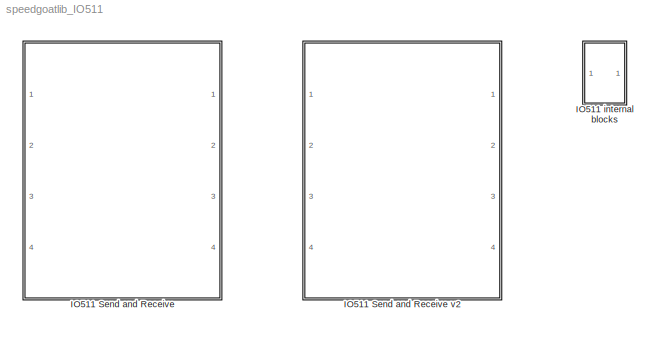
MODEL speedgoatlib_IO511
KIND library
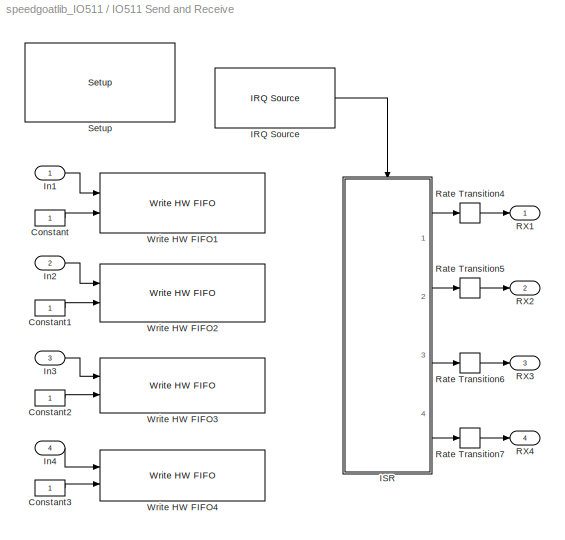
BLOCK [SubSystem] IO511 Send and Receive
  FunctionWithSeparateData = off
  MaskDisplay = disp('IO511<path>');\nport_label('input', 1, 'Chan1 TX' );\nport_label('input', 2, 'Chan2 TX' );\nport_label('input', 3, 'Chan3 TX' );\nport_label('input', 4, 'Chan4 TX' );\nport_label('output', 1, 'Chan1 RX' );\nport_label('output', 2, 'Chan2 RX' );\nport_label('output', 3, 'Chan3 RX' );\nport_label('output', 4, 'Chan4 RX' );\n\n
  MaskHideContents = off
  MaskIconFrame = on
  MaskIconOpaque = on
  MaskIconRotate = none
  MaskIconUnits = autoscale
  MaskPortRotate = default
  MinAlgLoopOccurrences = off
  Opaque = off
  Ports = [4, 4]
  PropExecContextOutsideSubsystem = off
  RTWSystemCode = Auto
  RequestExecContextInheritance = off
  SID = 149
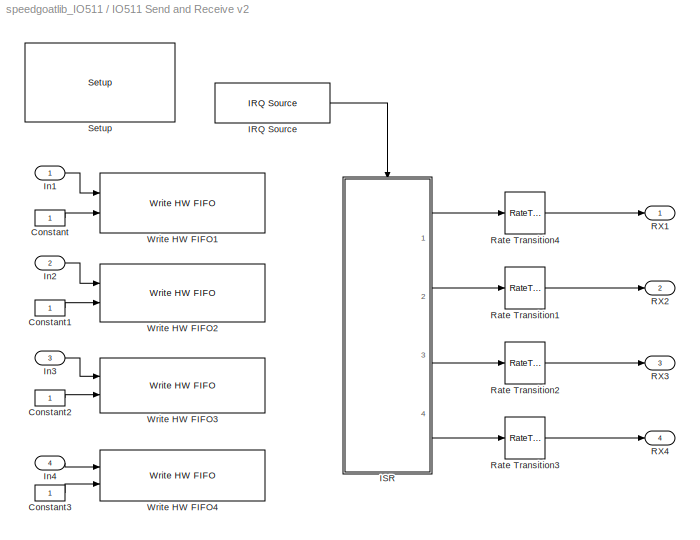
BLOCK [SubSystem] IO511 Send and Receive v2
  FunctionWithSeparateData = off
  MaskCallbackString = ||sg_IO511_sendrecv_m(2);||||||||||||||||
  MaskDescription = IO511 Send and Receive block
  MaskDisplay = disp('IO511<path>');\nport_label('input', 1, 'Chan1 TX' );\nport_label('input', 2, 'Chan2 TX' );\nport_label('input', 3, 'Chan3 TX' );\nport_label('input', 4, 'Chan4 TX' );\nport_label('output', 1, 'Chan1 RX' );\nport_label('output', 2, 'Chan2 RX' );\nport_label('output', 3, 'Chan3 RX' );\nport_label('output', 4, 'Chan4 RX' );\n\n
  MaskEnableString = on,on,on,on,on,on,on,on,on,on,on,on,on,on,on,on,on,on,on
  MaskHelp = web(['<userpath><path>'],'-helpbrowser');
  MaskHideContents = off
  MaskIconFrame = on
  MaskIconOpaque = on
  MaskIconRotate = none
  MaskIconUnits = autoscale
  MaskInitialization = %set_param(gcb, 'LinkStatus', 'inactive');\nmode_vect = nan;\nfreq_vect = nan; \nfifo_threshold_vect = nan;\nsg_IO511_sendrecv_m(3);\nsg_IO511_sendrecv_m(1, module_id, pci_slot, ...\n                       mode_vect, channel1_mode, channel2_mode, channel3_mode, channel4_mode, ...\n                       freq_vect, channel1_freq, channel2_freq, channel3_freq, channel4_freq, ...\n                   ...<+239ch>
  MaskPortRotate = default
  MaskPromptString = Module identifier|PCI slot (-1: autosearch)|Channel setup|Mode|Mode|Mode|Mode|Frequency [Hz] (-1 if TX freq is cable sourced)|Frequency [Hz] (-1 if TX freq is cable sourced)|Frequency [Hz] (-1 if TX freq is cable sourced)|Frequency [Hz] (-1 if TX freq is cable sourced)|RX FIFO almost full threshold|RX FIFO almost full threshold|RX FIFO almost full threshold|RX FIFO almost full threshold|Data size ...<+61ch>
  MaskSelfModifiable = on
  MaskStyleString = popup(1|2),edit,popup(1|2|3|4),popup(DTE|DCE),popup(DTE|DCE),popup(DTE|DCE),popup(DTE|DCE),edit,edit,edit,edit,edit,edit,edit,edit,edit,edit,edit,edit
  MaskToolTipString = on,on,on,on,on,on,on,on,on,on,on,on,on,on,on,on,on,on,on
  MaskTunableValueString = on,on,on,on,on,on,on,on,on,on,on,on,on,on,on,on,on,on,on
  MaskType = sendrecv_IO511
  MaskValueString = 1|-1|1|DTE|DTE|DCE|DCE|10e6|10e6|10e6|10e6|2|2|2|2|2|2|2|2
  MaskVariables = module_id=@1;pci_slot=@2;channel_setup=@3;channel1_mode=@4;channel2_mode=@5;channel3_mode=@6;channel4_mode=@7;channel1_freq=@8;channel2_freq=@9;channel3_freq=@10;channel4_freq=@11;channel1_fifo_threshold=@12;channel2_fifo_threshold=@13;channel3_fifo_threshold=@14;channel4_fifo_threshold=@15;channel1_data_size=@16;channel2_data_size=@17;channel3_data_size=@18;channel4_data_size=@19;
  MaskVisibilityString = on,on,on,on,off,off,off,on,off,off,off,on,off,off,off,on,off,off,off
  MinAlgLoopOccurrences = off
  Opaque = off
  Ports = [4, 4]
  PropExecContextOutsideSubsystem = off
  RTWSystemCode = Auto
  RequestExecContextInheritance = off
  SID = 105
BLOCK [Constant] IO511 Send and Receive v2/Constant
  OutDataTypeStr = Inherit: Inherit via back propagation
  SID = 105:110
BLOCK [Constant] IO511 Send and Receive v2/Constant1
  OutDataTypeStr = Inherit: Inherit via back propagation
  SID = 105:111
BLOCK [Constant] IO511 Send and Receive v2/Constant2
  OutDataTypeStr = Inherit: Inherit via back propagation
  SID = 105:112
BLOCK [Constant] IO511 Send and Receive v2/Constant3
  OutDataTypeStr = Inherit: Inherit via back propagation
  SID = 105:113
BLOCK [Reference] IO511 Send and Receive v2/IRQ Source  REF=xpclib/Asynchronous\nEvent/IRQ Source
  Ports = [0, 1]
  SID = 105:148
  SourceBlock = xpclib/Asynchronous\nEvent/IRQ Source
  SourceType = xpcinterrupt
  b_type = ATI-RP-R5
  irqNo = Auto (PCI only)
  preempt = off
  slot = -1
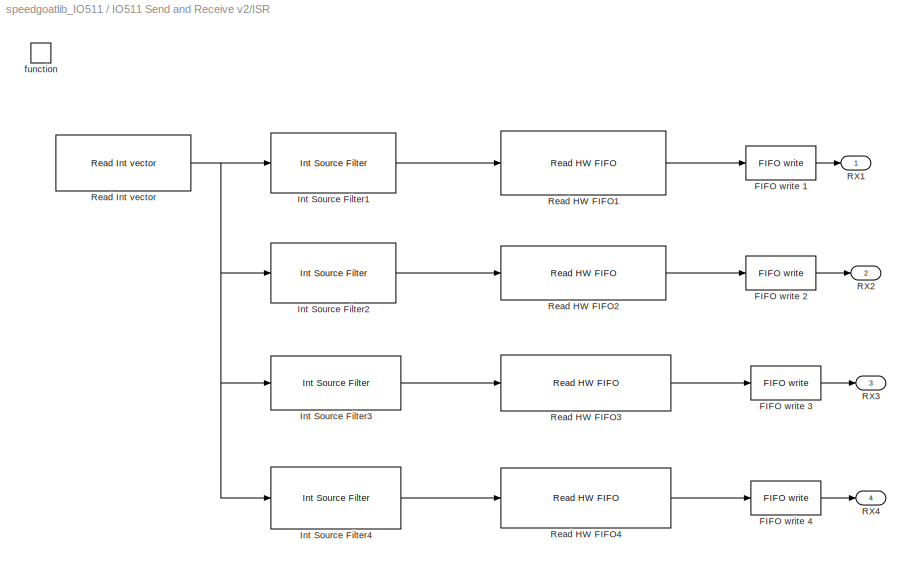
BLOCK [SubSystem] IO511 Send and Receive v2/ISR
  FunctionWithSeparateData = off
  MaskHideContents = off
  MinAlgLoopOccurrences = off
  Opaque = off
  Ports = [0, 4, 0, 1]
  PropExecContextOutsideSubsystem = off
  RTWSystemCode = Auto
  RequestExecContextInheritance = off
  SID = 105:115
  TreatAsAtomicUnit = on
BLOCK [Reference] IO511 Send and Receive v2/ISR/FIFO write 1  REF=xpcseriallib/FIFO write 
  Ports = [1, 1]
  SID = 105:117
  SourceBlock = xpcseriallib/FIFO write
  SourceType = Asynchronous FIFO Block: writer
  id = IO511 RCV channel 1
  inputtype = count+16 bit uint
  present = off
  sampletime = -1
  size = 1024
BLOCK [Reference] IO511 Send and Receive v2/ISR/FIFO write 2  REF=xpcseriallib/FIFO write 
  Ports = [1, 1]
  SID = 105:118
  SourceBlock = xpcseriallib/FIFO write
  SourceType = Asynchronous FIFO Block: writer
  id = IO511 RCV channel 2
  inputtype = count+16 bit uint
  present = off
  sampletime = -1
  size = 1024
BLOCK [Reference] IO511 Send and Receive v2/ISR/FIFO write 3  REF=xpcseriallib/FIFO write 
  Ports = [1, 1]
  SID = 105:119
  SourceBlock = xpcseriallib/FIFO write
  SourceType = Asynchronous FIFO Block: writer
  id = IO511 RCV channel 3
  inputtype = count+16 bit uint
  present = off
  sampletime = -1
  size = 1024
BLOCK [Reference] IO511 Send and Receive v2/ISR/FIFO write 4  REF=xpcseriallib/FIFO write 
  Ports = [1, 1]
  SID = 105:120
  SourceBlock = xpcseriallib/FIFO write
  SourceType = Asynchronous FIFO Block: writer
  id = IO511 RCV channel 4
  inputtype = count+16 bit uint
  present = off
  sampletime = -1
  size = 1024
BLOCK [Reference] IO511 Send and Receive v2/ISR/Int Source Filter1  REF=speedgoatlib_IO511/IO511 internal blocks/Int Source Filter
  Ports = [1, 1]
  SID = 105:121
  SourceBlock = speedgoatlib_IO511/IO511 internal blocks/Int Source Filter
  SourceType = intfilter_IO511
  chan = 1
  dir = 1
  id = 1
  pciSlot = -1
  ts = -1
  width = 2
BLOCK [Reference] IO511 Send and Receive v2/ISR/Int Source Filter2  REF=speedgoatlib_IO511/IO511 internal blocks/Int Source Filter
  Ports = [1, 1]
  SID = 105:122
  SourceBlock = speedgoatlib_IO511/IO511 internal blocks/Int Source Filter
  SourceType = intfilter_IO511
  chan = 2
  dir = 1
  id = 1
  pciSlot = -1
  ts = -1
  width = 2
BLOCK [Reference] IO511 Send and Receive v2/ISR/Int Source Filter3  REF=speedgoatlib_IO511/IO511 internal blocks/Int Source Filter
  Ports = [1, 1]
  SID = 105:123
  SourceBlock = speedgoatlib_IO511/IO511 internal blocks/Int Source Filter
  SourceType = intfilter_IO511
  chan = 3
  dir = 1
  id = 1
  pciSlot = -1
  ts = -1
  width = 2
BLOCK [Reference] IO511 Send and Receive v2/ISR/Int Source Filter4  REF=speedgoatlib_IO511/IO511 internal blocks/Int Source Filter
  Ports = [1, 1]
  SID = 105:124
  SourceBlock = speedgoatlib_IO511/IO511 internal blocks/Int Source Filter
  SourceType = intfilter_IO511
  chan = 4
  dir = 1
  id = 1
  pciSlot = -1
  ts = -1
  width = 2
BLOCK [Outport] IO511 Send and Receive v2/ISR/RX1
  IconDisplay = Port number
  SID = 105:130
BLOCK [Outport] IO511 Send and Receive v2/ISR/RX2
  IconDisplay = Port number
  Port = 2
  SID = 105:131
BLOCK [Outport] IO511 Send and Receive v2/ISR/RX3
  IconDisplay = Port number
  Port = 3
  SID = 105:132
BLOCK [Outport] IO511 Send and Receive v2/ISR/RX4
  IconDisplay = Port number
  Port = 4
  SID = 105:133
BLOCK [Reference] IO511 Send and Receive v2/ISR/Read HW FIFO1  REF=speedgoatlib_IO511/IO511 internal blocks/Read HW FIFO
  Ports = [1, 1]
  SID = 105:125
  SourceBlock = speedgoatlib_IO511/IO511 internal blocks/Read HW FIFO
  SourceType = rdhwfifo_IO511
  chan = 1
  fifoSize = 1024
  id = 1
  pciSlot = -1
  ts = -1
BLOCK [Reference] IO511 Send and Receive v2/ISR/Read HW FIFO2  REF=speedgoatlib_IO511/IO511 internal blocks/Read HW FIFO
  Ports = [1, 1]
  SID = 105:126
  SourceBlock = speedgoatlib_IO511/IO511 internal blocks/Read HW FIFO
  SourceType = rdhwfifo_IO511
  chan = 2
  fifoSize = 1024
  id = 1
  pciSlot = -1
  ts = -1
BLOCK [Reference] IO511 Send and Receive v2/ISR/Read HW FIFO3  REF=speedgoatlib_IO511/IO511 internal blocks/Read HW FIFO
  Ports = [1, 1]
  SID = 105:127
  SourceBlock = speedgoatlib_IO511/IO511 internal blocks/Read HW FIFO
  SourceType = rdhwfifo_IO511
  chan = 3
  fifoSize = 1024
  id = 1
  pciSlot = -1
  ts = -1
BLOCK [Reference] IO511 Send and Receive v2/ISR/Read HW FIFO4  REF=speedgoatlib_IO511/IO511 internal blocks/Read HW FIFO
  Ports = [1, 1]
  SID = 105:128
  SourceBlock = speedgoatlib_IO511/IO511 internal blocks/Read HW FIFO
  SourceType = rdhwfifo_IO511
  chan = 4
  fifoSize = 1024
  id = 1
  pciSlot = -1
  ts = -1
BLOCK [Reference] IO511 Send and Receive v2/ISR/Read Int vector  REF=speedgoatlib_IO511/IO511 internal blocks/Read Int vector
  Ports = [0, 1]
  SID = 105:129
  SourceBlock = speedgoatlib_IO511/IO511 internal blocks/Read Int vector
  SourceType = rdintvector_IO511
  id = 1
  pciSlot = -1
  ts = -1
BLOCK [TriggerPort] IO511 Send and Receive v2/ISR/function
  Ports = []
  SID = 105:116
  StatesWhenEnabling = held
  TriggerType = function-call
BLOCK [Inport] IO511 Send and Receive v2/In1
  IconDisplay = Port number
  SID = 105:106
BLOCK [Inport] IO511 Send and Receive v2/In2
  IconDisplay = Port number
  Port = 2
  SID = 105:107
BLOCK [Inport] IO511 Send and Receive v2/In3
  IconDisplay = Port number
  Port = 3
  SID = 105:108
BLOCK [Inport] IO511 Send and Receive v2/In4
  IconDisplay = Port number
  Port = 4
  SID = 105:109
BLOCK [Outport] IO511 Send and Receive v2/RX1
  IconDisplay = Port number
  SID = 105:143
BLOCK [Outport] IO511 Send and Receive v2/RX2
  IconDisplay = Port number
  Port = 2
  SID = 105:144
BLOCK [Outport] IO511 Send and Receive v2/RX3
  IconDisplay = Port number
  Port = 3
  SID = 105:145
BLOCK [Outport] IO511 Send and Receive v2/RX4
  IconDisplay = Port number
  Port = 4
  SID = 105:146
BLOCK [RateTransition] IO511 Send and Receive v2/Rate Transition1
  Deterministic = off
  Integrity = off
  SID = 105:134
BLOCK [RateTransition] IO511 Send and Receive v2/Rate Transition2
  Deterministic = off
  Integrity = off
  SID = 105:135
BLOCK [RateTransition] IO511 Send and Receive v2/Rate Transition3
  Deterministic = off
  Integrity = off
  SID = 105:136
BLOCK [RateTransition] IO511 Send and Receive v2/Rate Transition4
  Deterministic = off
  Integrity = off
  SID = 105:137
BLOCK [Reference] IO511 Send and Receive v2/Setup  REF=speedgoatlib_IO511/IO511 internal blocks/Setup
  Ports = []
  SID = 105:138
  SourceBlock = speedgoatlib_IO511/IO511 internal blocks/Setup
  SourceType = setup_IO511
  chan = [1 2 3 4]
  freq = [10000000 10000000 10000000 10000000]
  id = 1
  mode = [0 0 1 1]
  pciSlot = -1
  rxAlmost = [2 2 2 2]
BLOCK [Reference] IO511 Send and Receive v2/Write HW FIFO1  REF=speedgoatlib_IO511/IO511 internal blocks/Write HW FIFO
  Ports = [2]
  SID = 105:139
  SourceBlock = speedgoatlib_IO511/IO511 internal blocks/Write HW FIFO
  SourceType = wrhwfifo_IO511
  chan = 1
  id = 1
  max = 2
  pciSlot = -1
  ts = -1
BLOCK [Reference] IO511 Send and Receive v2/Write HW FIFO2  REF=speedgoatlib_IO511/IO511 internal blocks/Write HW FIFO
  Ports = [2]
  SID = 105:140
  SourceBlock = speedgoatlib_IO511/IO511 internal blocks/Write HW FIFO
  SourceType = wrhwfifo_IO511
  chan = 2
  id = 1
  max = 2
  pciSlot = -1
  ts = -1
BLOCK [Reference] IO511 Send and Receive v2/Write HW FIFO3  REF=speedgoatlib_IO511/IO511 internal blocks/Write HW FIFO
  Ports = [2]
  SID = 105:141
  SourceBlock = speedgoatlib_IO511/IO511 internal blocks/Write HW FIFO
  SourceType = wrhwfifo_IO511
  chan = 3
  id = 1
  max = 2
  pciSlot = -1
  ts = -1
BLOCK [Reference] IO511 Send and Receive v2/Write HW FIFO4  REF=speedgoatlib_IO511/IO511 internal blocks/Write HW FIFO
  Ports = [2]
  SID = 105:142
  SourceBlock = speedgoatlib_IO511/IO511 internal blocks/Write HW FIFO
  SourceType = wrhwfifo_IO511
  chan = 4
  id = 1
  max = 2
  pciSlot = -1
  ts = -1
BLOCK [Constant] IO511 Send and Receive/Constant
  OutDataTypeStr = Inherit: Inherit via back propagation
  SID = 154
BLOCK [Constant] IO511 Send and Receive/Constant1
  OutDataTypeStr = Inherit: Inherit via back propagation
  SID = 155
BLOCK [Constant] IO511 Send and Receive/Constant2
  OutDataTypeStr = Inherit: Inherit via back propagation
  SID = 156
BLOCK [Constant] IO511 Send and Receive/Constant3
  OutDataTypeStr = Inherit: Inherit via back propagation
  SID = 157
BLOCK [Reference] IO511 Send and Receive/IRQ Source  REF=xpclib/Asynchronous\nEvent/IRQ Source
  Ports = [0, 1]
  SID = 158
  SourceBlock = xpclib/Asynchronous\nEvent/IRQ Source
  SourceType = xpcinterrupt
  b_type = ATI-RP-R5
  irqNo = Auto (PCI only)
  preempt = off
  slot = -1
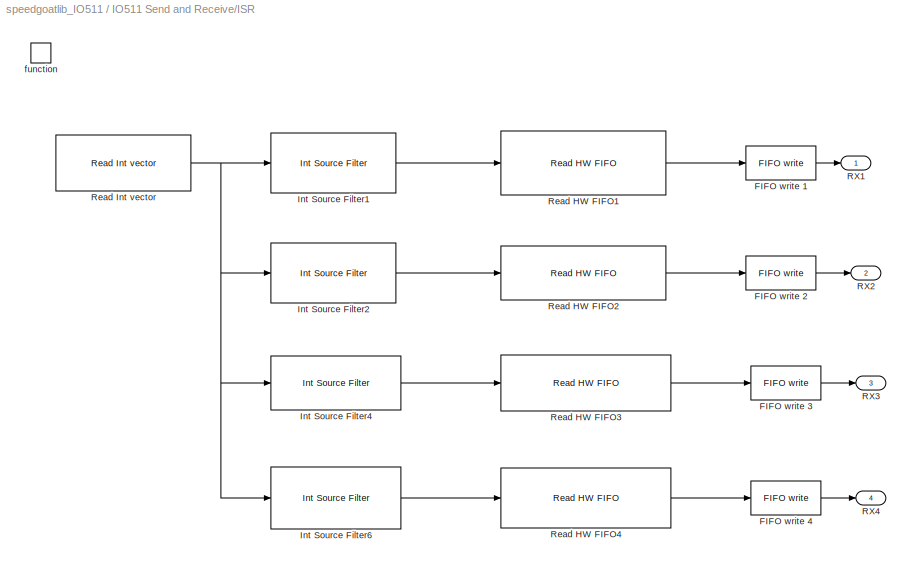
BLOCK [SubSystem] IO511 Send and Receive/ISR
  FunctionWithSeparateData = off
  MaskHideContents = off
  MinAlgLoopOccurrences = off
  Opaque = off
  Ports = [0, 4, 0, 1]
  PropExecContextOutsideSubsystem = off
  RTWSystemCode = Auto
  RequestExecContextInheritance = off
  SID = 159
  TreatAsAtomicUnit = on
BLOCK [Reference] IO511 Send and Receive/ISR/FIFO write 1  REF=xpcseriallib/FIFO write 
  Ports = [1, 1]
  SID = 161
  SourceBlock = xpcseriallib/FIFO write
  SourceType = Asynchronous FIFO Block: writer
  id = RCV channel 1
  inputtype = count+16 bit uint
  present = off
  sampletime = -1
  size = 1024
BLOCK [Reference] IO511 Send and Receive/ISR/FIFO write 2  REF=xpcseriallib/FIFO write 
  Ports = [1, 1]
  SID = 162
  SourceBlock = xpcseriallib/FIFO write
  SourceType = Asynchronous FIFO Block: writer
  id = RCV channel 2
  inputtype = count+16 bit uint
  present = off
  sampletime = -1
  size = 1024
BLOCK [Reference] IO511 Send and Receive/ISR/FIFO write 3  REF=xpcseriallib/FIFO write 
  Ports = [1, 1]
  SID = 163
  SourceBlock = xpcseriallib/FIFO write
  SourceType = Asynchronous FIFO Block: writer
  id = RCV channel 3
  inputtype = count+16 bit uint
  present = off
  sampletime = -1
  size = 1024
BLOCK [Reference] IO511 Send and Receive/ISR/FIFO write 4  REF=xpcseriallib/FIFO write 
  Ports = [1, 1]
  SID = 164
  SourceBlock = xpcseriallib/FIFO write
  SourceType = Asynchronous FIFO Block: writer
  id = RCV channel 4
  inputtype = count+16 bit uint
  present = off
  sampletime = -1
  size = 1024
BLOCK [Reference] IO511 Send and Receive/ISR/Int Source Filter1  REF=speedgoatlib_IO511/IO511 internal blocks/Int Source Filter
  Ports = [1, 1]
  SID = 165
  SourceBlock = speedgoatlib_IO511/IO511 internal blocks/Int Source Filter
  SourceType = intfilter_IO511
  chan = 1
  dir = 1
  id = 1
  pciSlot = -1
  ts = -1
  width = 2
BLOCK [Reference] IO511 Send and Receive/ISR/Int Source Filter2  REF=speedgoatlib_IO511/IO511 internal blocks/Int Source Filter
  Ports = [1, 1]
  SID = 166
  SourceBlock = speedgoatlib_IO511/IO511 internal blocks/Int Source Filter
  SourceType = intfilter_IO511
  chan = 2
  dir = 1
  id = 1
  pciSlot = -1
  ts = -1
  width = 2
BLOCK [Reference] IO511 Send and Receive/ISR/Int Source Filter4  REF=speedgoatlib_IO511/IO511 internal blocks/Int Source Filter
  Ports = [1, 1]
  SID = 167
  SourceBlock = speedgoatlib_IO511/IO511 internal blocks/Int Source Filter
  SourceType = intfilter_IO511
  chan = 3
  dir = 1
  id = 1
  pciSlot = -1
  ts = -1
  width = 2
BLOCK [Reference] IO511 Send and Receive/ISR/Int Source Filter6  REF=speedgoatlib_IO511/IO511 internal blocks/Int Source Filter
  Ports = [1, 1]
  SID = 168
  SourceBlock = speedgoatlib_IO511/IO511 internal blocks/Int Source Filter
  SourceType = intfilter_IO511
  chan = 4
  dir = 1
  id = 1
  pciSlot = -1
  ts = -1
  width = 2
BLOCK [Outport] IO511 Send and Receive/ISR/RX1
  IconDisplay = Port number
  SID = 174
BLOCK [Outport] IO511 Send and Receive/ISR/RX2
  IconDisplay = Port number
  Port = 2
  SID = 175
BLOCK [Outport] IO511 Send and Receive/ISR/RX3
  IconDisplay = Port number
  Port = 3
  SID = 176
BLOCK [Outport] IO511 Send and Receive/ISR/RX4
  IconDisplay = Port number
  Port = 4
  SID = 177
BLOCK [Reference] IO511 Send and Receive/ISR/Read HW FIFO1  REF=speedgoatlib_IO511/IO511 internal blocks/Read HW FIFO
  Ports = [1, 1]
  SID = 169
  SourceBlock = speedgoatlib_IO511/IO511 internal blocks/Read HW FIFO
  SourceType = rdhwfifo_IO511
  chan = 1
  fifoSize = 64
  id = 1
  pciSlot = -1
  ts = -1
BLOCK [Reference] IO511 Send and Receive/ISR/Read HW FIFO2  REF=speedgoatlib_IO511/IO511 internal blocks/Read HW FIFO
  Ports = [1, 1]
  SID = 170
  SourceBlock = speedgoatlib_IO511/IO511 internal blocks/Read HW FIFO
  SourceType = rdhwfifo_IO511
  chan = 2
  fifoSize = 64
  id = 1
  pciSlot = -1
  ts = -1
BLOCK [Reference] IO511 Send and Receive/ISR/Read HW FIFO3  REF=speedgoatlib_IO511/IO511 internal blocks/Read HW FIFO
  Ports = [1, 1]
  SID = 171
  SourceBlock = speedgoatlib_IO511/IO511 internal blocks/Read HW FIFO
  SourceType = rdhwfifo_IO511
  chan = 3
  fifoSize = 64
  id = 1
  pciSlot = -1
  ts = -1
BLOCK [Reference] IO511 Send and Receive/ISR/Read HW FIFO4  REF=speedgoatlib_IO511/IO511 internal blocks/Read HW FIFO
  Ports = [1, 1]
  SID = 172
  SourceBlock = speedgoatlib_IO511/IO511 internal blocks/Read HW FIFO
  SourceType = rdhwfifo_IO511
  chan = 4
  fifoSize = 64
  id = 1
  pciSlot = -1
  ts = -1
BLOCK [Reference] IO511 Send and Receive/ISR/Read Int vector  REF=speedgoatlib_IO511/IO511 internal blocks/Read Int vector
  Ports = [0, 1]
  SID = 173
  SourceBlock = speedgoatlib_IO511/IO511 internal blocks/Read Int vector
  SourceType = rdintvector_IO511
  id = 1
  pciSlot = -1
  ts = -1
BLOCK [TriggerPort] IO511 Send and Receive/ISR/function
  Ports = []
  SID = 160
  StatesWhenEnabling = held
  TriggerType = function-call
BLOCK [Inport] IO511 Send and Receive/In1
  IconDisplay = Port number
  SID = 150
BLOCK [Inport] IO511 Send and Receive/In2
  IconDisplay = Port number
  Port = 2
  SID = 151
BLOCK [Inport] IO511 Send and Receive/In3
  IconDisplay = Port number
  Port = 3
  SID = 152
BLOCK [Inport] IO511 Send and Receive/In4
  IconDisplay = Port number
  Port = 4
  SID = 153
BLOCK [Outport] IO511 Send and Receive/RX1
  IconDisplay = Port number
  SID = 187
BLOCK [Outport] IO511 Send and Receive/RX2
  IconDisplay = Port number
  Port = 2
  SID = 188
BLOCK [Outport] IO511 Send and Receive/RX3
  IconDisplay = Port number
  Port = 3
  SID = 189
BLOCK [Outport] IO511 Send and Receive/RX4
  IconDisplay = Port number
  Port = 4
  SID = 190
BLOCK [RateTransition] IO511 Send and Receive/Rate Transition4
  Deterministic = off
  Integrity = off
  SID = 178
BLOCK [RateTransition] IO511 Send and Receive/Rate Transition5
  Deterministic = off
  Integrity = off
  SID = 179
BLOCK [RateTransition] IO511 Send and Receive/Rate Transition6
  Deterministic = off
  Integrity = off
  SID = 180
BLOCK [RateTransition] IO511 Send and Receive/Rate Transition7
  Deterministic = off
  Integrity = off
  SID = 181
BLOCK [Reference] IO511 Send and Receive/Setup  REF=speedgoatlib_IO511/IO511 internal blocks/Setup
  Ports = []
  SID = 182
  SourceBlock = speedgoatlib_IO511/IO511 internal blocks/Setup
  SourceType = setup_IO511
  chan = [1 2 3 4]
  freq = 1e6
  id = 1
  mode = [1 1 0 0]
  pciSlot = -1
  rxAlmost = [2 2 2 2]
BLOCK [Reference] IO511 Send and Receive/Write HW FIFO1  REF=speedgoatlib_IO511/IO511 internal blocks/Write HW FIFO
  Ports = [2]
  SID = 183
  SourceBlock = speedgoatlib_IO511/IO511 internal blocks/Write HW FIFO
  SourceType = wrhwfifo_IO511
  chan = 1
  id = 1
  max = 2
  pciSlot = -1
  ts = -1
BLOCK [Reference] IO511 Send and Receive/Write HW FIFO2  REF=speedgoatlib_IO511/IO511 internal blocks/Write HW FIFO
  Ports = [2]
  SID = 184
  SourceBlock = speedgoatlib_IO511/IO511 internal blocks/Write HW FIFO
  SourceType = wrhwfifo_IO511
  chan = 2
  id = 1
  max = 2
  pciSlot = -1
  ts = -1
BLOCK [Reference] IO511 Send and Receive/Write HW FIFO3  REF=speedgoatlib_IO511/IO511 internal blocks/Write HW FIFO
  Ports = [2]
  SID = 185
  SourceBlock = speedgoatlib_IO511/IO511 internal blocks/Write HW FIFO
  SourceType = wrhwfifo_IO511
  chan = 3
  id = 1
  max = 2
  pciSlot = -1
  ts = -1
BLOCK [Reference] IO511 Send and Receive/Write HW FIFO4  REF=speedgoatlib_IO511/IO511 internal blocks/Write HW FIFO
  Ports = [2]
  SID = 186
  SourceBlock = speedgoatlib_IO511/IO511 internal blocks/Write HW FIFO
  SourceType = wrhwfifo_IO511
  chan = 4
  id = 1
  max = 2
  pciSlot = -1
  ts = -1
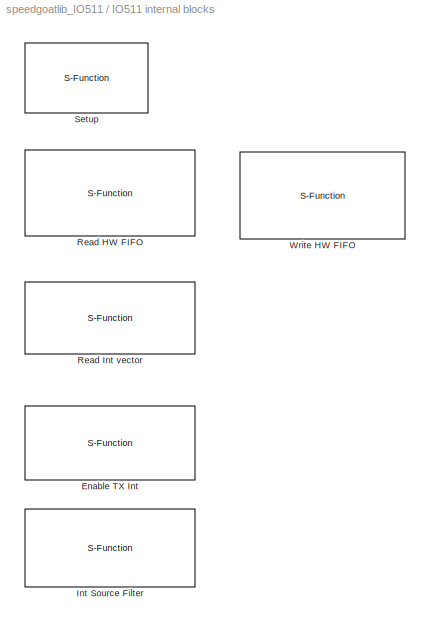
BLOCK [SubSystem] IO511 internal blocks
  FunctionWithSeparateData = off
  MaskHideContents = off
  MinAlgLoopOccurrences = off
  Opaque = off
  Ports = []
  PropExecContextOutsideSubsystem = off
  RTWSystemCode = Auto
  RequestExecContextInheritance = off
  SID = 3
BLOCK [S-Function] IO511 internal blocks/Enable TX Int
  EnableBusSupport = off
  FunctionName = sg_IO511_txintenable_s
  InitFcn = sg_IO511_txintenable_m(1);
  MaskCallbackString = |||
  MaskDescription = Speedgoat driver block<br>IO511 - HDLC/SDLC enable TX interrupts<br><br>&copy; 2006 - 2012, Speedgoat GmbH, www.speedgoat.ch
  MaskDisplay = disp('Speedgoat<path> enable TX int\\nModule: 1');port_label('input', 1, 'DP');
  MaskEnableString = on,on,on,on
  MaskHelp = Documentation for this block is not available.
  MaskIconFrame = on
  MaskIconOpaque = on
  MaskIconRotate = none
  MaskIconUnits = autoscale
  MaskInitialization = sg_IO511_txintenable_m(3, id);
  MaskPortRotate = default
  MaskPromptString = IO511 module identifier:|Channel:|PCI slot (-1: autosearch):|Sample time:
  MaskSelfModifiable = on
  MaskStyleString = popup(1|2|3|4|5|6|7|8|9|10),edit,edit,edit
  MaskToolTipString = on,on,on,on
  MaskTunableValueString = on,on,on,on
  MaskType = txintenable_IO511
  MaskValueString = 1|1|-1|0.001
  MaskVariables = id=@1;chan=@2;pciSlot=@3;ts=@4;
  MaskVisibilityString = on,on,off,on
  Parameters = pciSlot, ts, chan
  Ports = [1]
  SID = 1
BLOCK [S-Function] IO511 internal blocks/Int Source Filter
  EnableBusSupport = off
  FunctionName = sg_IO511_intfilter_s
  InitFcn = sg_IO511_intfilter_m(1);
  MaskCallbackString = |||||
  MaskDescription = Speedgoat driver block<br>IO511 - HDLC/SDLC interrupts source filter<br><br>&copy; 2006 - 2012, Speedgoat GmbH, www.speedgoat.ch
  MaskDisplay = disp('Speedgoat<path> int filter\\nModule: 1');port_label('input', 1, 'S');port_label('output', 1, 'E');
  MaskEnableString = on,on,on,on,on,on
  MaskHelp = Documentation for this block is not available.
  MaskIconFrame = on
  MaskIconOpaque = on
  MaskIconRotate = none
  MaskIconUnits = autoscale
  MaskInitialization = sg_IO511_intfilter_m(3, id);
  MaskPortRotate = default
  MaskPromptString = IO511 module identifier:|Channel:|Direction (TX: 0, RX: 1, USC: 2):|Width:|Sample time:|PCI slot (-1: autosearch):
  MaskSelfModifiable = on
  MaskStyleString = popup(1|2|3|4|5|6|7|8|9|10),edit,edit,edit,edit,edit
  MaskToolTipString = on,on,on,on,on,on
  MaskTunableValueString = on,on,on,on,on,on
  MaskType = intfilter_IO511
  MaskValueString = 1|1|1|1|-1|-1
  MaskVariables = id=@1;chan=@2;dir=@3;width=@4;ts=@5;pciSlot=@6;
  MaskVisibilityString = on,on,on,on,on,off
  Parameters = pciSlot,ts,dir,chan,width
  Ports = [1, 1]
  SID = 8
BLOCK [S-Function] IO511 internal blocks/Read HW FIFO
  EnableBusSupport = off
  FunctionName = sg_IO511_rdhwfifo_s
  InitFcn = sg_IO511_rdhwfifo_m(1);
  MaskCallbackString = ||||
  MaskDescription = Speedgoat driver block<br>IO511 - HDLC/SDLC read HW FIFO<br><br>&copy; 2006 - 2012, Speedgoat GmbH, www.speedgoat.ch
  MaskDisplay = disp('Speedgoat<path> read HW FIFO\\nModule: 1');port_label('input', 1, 'E');port_label('output', 1, 'D');
  MaskEnableString = on,on,on,on,on
  MaskHelp = Documentation for this block is not available.
  MaskIconFrame = on
  MaskIconOpaque = on
  MaskIconRotate = none
  MaskIconUnits = autoscale
  MaskInitialization = sg_IO511_rdhwfifo_m(3, id);
  MaskPortRotate = default
  MaskPromptString = IO511 module identifier:|Channel:|FIFO size to read:|PCI slot (-1: autosearch):|Sample time:
  MaskSelfModifiable = on
  MaskStyleString = popup(1|2|3|4|5|6|7|8|9|10),edit,edit,edit,edit
  MaskToolTipString = on,on,on,on,on
  MaskTunableValueString = on,on,on,on,on
  MaskType = rdhwfifo_IO511
  MaskValueString = 1|1|1|-1|-1
  MaskVariables = id=@1;chan=@2;fifoSize=@3;pciSlot=@4;ts=@5;
  MaskVisibilityString = on,on,on,off,on
  Parameters = pciSlot, ts, chan, fifoSize
  Ports = [1, 1]
  SID = 5
BLOCK [S-Function] IO511 internal blocks/Read Int vector
  EnableBusSupport = off
  FunctionName = sg_IO511_rdintvector_s
  InitFcn = sg_IO511_rdintvector_m(1);
  MaskCallbackString = ||
  MaskDescription = Speedgoat driver block<br>IO511 - HDLC/SDLC read interrupt vector<br><br>&copy; 2006 - 2012, Speedgoat GmbH, www.speedgoat.ch
  MaskDisplay = disp('Speedgoat<path> read int\\nModule: 1');port_label('output', 1, 'S');
  MaskEnableString = on,on,on
  MaskHelp = Documentation for this block is not available.
  MaskIconFrame = on
  MaskIconOpaque = on
  MaskIconRotate = none
  MaskIconUnits = autoscale
  MaskInitialization = sg_IO511_rdintvector_m(3, id);
  MaskPortRotate = default
  MaskPromptString = IO511 module identifier:|Sample time:|PCI slot (-1: autosearch):
  MaskSelfModifiable = on
  MaskStyleString = popup(1|2|3|4|5|6|7|8|9|10),edit,edit
  MaskToolTipString = on,on,on
  MaskTunableValueString = on,on,on
  MaskType = rdintvector_IO511
  MaskValueString = 1|-1|-1
  MaskVariables = id=@1;ts=@2;pciSlot=@3;
  MaskVisibilityString = on,on,off
  Parameters = pciSlot,ts
  Ports = [0, 1]
  SID = 9
BLOCK [S-Function] IO511 internal blocks/Setup
  EnableBusSupport = off
  FunctionName = sg_IO511_setup_s
  InitFcn = sg_IO511_setup_m(1);
  MaskCallbackString = |||||
  MaskDescription = Speedgoat driver block<br>IO511 - Setup<br><br>&copy; 2006 - 2012, Speedgoat GmbH, www.speedgoat.ch
  MaskDisplay = disp('Speedgoat<path>: 1');
  MaskEnableString = on,on,on,on,on,on
  MaskHelp = Documentation for this block is not available.
  MaskIconFrame = on
  MaskIconOpaque = on
  MaskIconRotate = none
  MaskIconUnits = autoscale
  MaskInitialization = sg_IO511_setup_m(3, id, pciSlot);\niocr = 0;
  MaskPortRotate = default
  MaskPromptString = IO511 module identifier:|Channels:|Mode (0: DTE, 1: DCE):|Frequency [Hz] (-1: if TX freq is cable sourced):|RX FIFO almost full threshold:|PCI slot (-1: autosearch):
  MaskSelfModifiable = on
  MaskStyleString = popup(1|2|3|4|5|6|7|8|9|10),edit,edit,edit,edit,edit
  MaskToolTipString = on,on,on,on,on,on
  MaskTunableValueString = on,on,on,on,on,on
  MaskType = setup_IO511
  MaskValueString = 1|[1 2 3 4]|[0 0 1 1]|[8e6 8e6 8e6 8e6]|[2 2 2 2]|-1
  MaskVariables = id=@1;chan=@2;mode=@3;freq=@4;rxAlmost=@5;pciSlot=@6;
  MaskVisibilityString = on,on,on,on,on,on
  Parameters = pciSlot, chan, mode, freq, rxAlmost
  Ports = []
  SID = 10
BLOCK [S-Function] IO511 internal blocks/Write HW FIFO
  EnableBusSupport = off
  FunctionName = sg_IO511_wrhwfifo_s
  InitFcn = sg_IO511_wrhwfifo_m(1);
  MaskCallbackString = ||||
  MaskDescription = Speedgoat driver block<br>IO511 - HDLC/SDLC write HW FIFO<br><br>&copy; 2006 - 2012, Speedgoat GmbH, www.speedgoat.ch
  MaskDisplay = disp('Speedgoat<path> write HW FIFO\\nModule: 1');port_label('input', 1, 'D');port_label('input', 2, 'E');
  MaskEnableString = on,on,on,on,on
  MaskHelp = Documentation for this block is not available.
  MaskIconFrame = on
  MaskIconOpaque = on
  MaskIconRotate = none
  MaskIconUnits = autoscale
  MaskInitialization = sg_IO511_wrhwfifo_m(3, id);
  MaskPortRotate = default
  MaskPromptString = IO511 module identifier:|Channel:|Maximum data to be written to software FIFO:|PCI slot (-1: autosearch):|Sample time:
  MaskSelfModifiable = on
  MaskStyleString = popup(1|2|3|4|5|6|7|8|9|10),edit,edit,edit,edit
  MaskToolTipString = on,on,on,on,on
  MaskTunableValueString = on,on,on,on,on
  MaskType = wrhwfifo_IO511
  MaskValueString = 1|1|64|-1|-1
  MaskVariables = id=@1;chan=@2;max=@3;pciSlot=@4;ts=@5;
  MaskVisibilityString = on,on,on,off,on
  Parameters = pciSlot, ts, chan, max
  Ports = [2]
  SID = 6
LINE IO511 Send and Receive v2/Constant1:1 -> IO511 Send and Receive v2/Write HW FIFO2:2
LINE IO511 Send and Receive v2/Constant2:1 -> IO511 Send and Receive v2/Write HW FIFO3:2
LINE IO511 Send and Receive v2/Constant3:1 -> IO511 Send and Receive v2/Write HW FIFO4:2
LINE IO511 Send and Receive v2/Constant:1 -> IO511 Send and Receive v2/Write HW FIFO1:2
LINE IO511 Send and Receive v2/IRQ Source:1 -> IO511 Send and Receive v2/ISR:trigger
LINE IO511 Send and Receive v2/ISR/FIFO write 1:1 -> IO511 Send and Receive v2/ISR/RX1:1
LINE IO511 Send and Receive v2/ISR/FIFO write 2:1 -> IO511 Send and Receive v2/ISR/RX2:1
LINE IO511 Send and Receive v2/ISR/FIFO write 3:1 -> IO511 Send and Receive v2/ISR/RX3:1
LINE IO511 Send and Receive v2/ISR/FIFO write 4:1 -> IO511 Send and Receive v2/ISR/RX4:1
LINE IO511 Send and Receive v2/ISR/Int Source Filter1:1 -> IO511 Send and Receive v2/ISR/Read HW FIFO1:1
LINE IO511 Send and Receive v2/ISR/Int Source Filter2:1 -> IO511 Send and Receive v2/ISR/Read HW FIFO2:1
LINE IO511 Send and Receive v2/ISR/Int Source Filter3:1 -> IO511 Send and Receive v2/ISR/Read HW FIFO3:1
LINE IO511 Send and Receive v2/ISR/Int Source Filter4:1 -> IO511 Send and Receive v2/ISR/Read HW FIFO4:1
LINE IO511 Send and Receive v2/ISR/Read HW FIFO1:1 -> IO511 Send and Receive v2/ISR/FIFO write 1:1
LINE IO511 Send and Receive v2/ISR/Read HW FIFO2:1 -> IO511 Send and Receive v2/ISR/FIFO write 2:1
LINE IO511 Send and Receive v2/ISR/Read HW FIFO3:1 -> IO511 Send and Receive v2/ISR/FIFO write 3:1
LINE IO511 Send and Receive v2/ISR/Read HW FIFO4:1 -> IO511 Send and Receive v2/ISR/FIFO write 4:1
NET IO511 Send and Receive v2/ISR/Read Int vector:1 -> IO511 Send and Receive v2/ISR/Int Source Filter1:1, IO511 Send and Receive v2/ISR/Int Source Filter2:1, IO511 Send and Receive v2/ISR/Int Source Filter3:1, IO511 Send and Receive v2/ISR/Int Source Filter4:1
LINE IO511 Send and Receive v2/ISR:1 -> IO511 Send and Receive v2/Rate Transition4:1
LINE IO511 Send and Receive v2/ISR:2 -> IO511 Send and Receive v2/Rate Transition1:1
LINE IO511 Send and Receive v2/ISR:3 -> IO511 Send and Receive v2/Rate Transition2:1
LINE IO511 Send and Receive v2/ISR:4 -> IO511 Send and Receive v2/Rate Transition3:1
LINE IO511 Send and Receive v2/In1:1 -> IO511 Send and Receive v2/Write HW FIFO1:1
LINE IO511 Send and Receive v2/In2:1 -> IO511 Send and Receive v2/Write HW FIFO2:1
LINE IO511 Send and Receive v2/In3:1 -> IO511 Send and Receive v2/Write HW FIFO3:1
LINE IO511 Send and Receive v2/In4:1 -> IO511 Send and Receive v2/Write HW FIFO4:1
LINE IO511 Send and Receive v2/Rate Transition1:1 -> IO511 Send and Receive v2/RX2:1
LINE IO511 Send and Receive v2/Rate Transition2:1 -> IO511 Send and Receive v2/RX3:1
LINE IO511 Send and Receive v2/Rate Transition3:1 -> IO511 Send and Receive v2/RX4:1
LINE IO511 Send and Receive v2/Rate Transition4:1 -> IO511 Send and Receive v2/RX1:1
LINE IO511 Send and Receive/Constant1:1 -> IO511 Send and Receive/Write HW FIFO2:2
LINE IO511 Send and Receive/Constant2:1 -> IO511 Send and Receive/Write HW FIFO3:2
LINE IO511 Send and Receive/Constant3:1 -> IO511 Send and Receive/Write HW FIFO4:2
LINE IO511 Send and Receive/Constant:1 -> IO511 Send and Receive/Write HW FIFO1:2
LINE IO511 Send and Receive/IRQ Source:1 -> IO511 Send and Receive/ISR:trigger
LINE IO511 Send and Receive/ISR/FIFO write 1:1 -> IO511 Send and Receive/ISR/RX1:1
LINE IO511 Send and Receive/ISR/FIFO write 2:1 -> IO511 Send and Receive/ISR/RX2:1
LINE IO511 Send and Receive/ISR/FIFO write 3:1 -> IO511 Send and Receive/ISR/RX3:1
LINE IO511 Send and Receive/ISR/FIFO write 4:1 -> IO511 Send and Receive/ISR/RX4:1
LINE IO511 Send and Receive/ISR/Int Source Filter1:1 -> IO511 Send and Receive/ISR/Read HW FIFO1:1
LINE IO511 Send and Receive/ISR/Int Source Filter2:1 -> IO511 Send and Receive/ISR/Read HW FIFO2:1
LINE IO511 Send and Receive/ISR/Int Source Filter4:1 -> IO511 Send and Receive/ISR/Read HW FIFO3:1
LINE IO511 Send and Receive/ISR/Int Source Filter6:1 -> IO511 Send and Receive/ISR/Read HW FIFO4:1
LINE IO511 Send and Receive/ISR/Read HW FIFO1:1 -> IO511 Send and Receive/ISR/FIFO write 1:1
LINE IO511 Send and Receive/ISR/Read HW FIFO2:1 -> IO511 Send and Receive/ISR/FIFO write 2:1
LINE IO511 Send and Receive/ISR/Read HW FIFO3:1 -> IO511 Send and Receive/ISR/FIFO write 3:1
LINE IO511 Send and Receive/ISR/Read HW FIFO4:1 -> IO511 Send and Receive/ISR/FIFO write 4:1
NET IO511 Send and Receive/ISR/Read Int vector:1 -> IO511 Send and Receive/ISR/Int Source Filter1:1, IO511 Send and Receive/ISR/Int Source Filter2:1, IO511 Send and Receive/ISR/Int Source Filter4:1, IO511 Send and Receive/ISR/Int Source Filter6:1
LINE IO511 Send and Receive/ISR:1 -> IO511 Send and Receive/Rate Transition4:1
LINE IO511 Send and Receive/ISR:2 -> IO511 Send and Receive/Rate Transition5:1
LINE IO511 Send and Receive/ISR:3 -> IO511 Send and Receive/Rate Transition6:1
LINE IO511 Send and Receive/ISR:4 -> IO511 Send and Receive/Rate Transition7:1
LINE IO511 Send and Receive/In1:1 -> IO511 Send and Receive/Write HW FIFO1:1
LINE IO511 Send and Receive/In2:1 -> IO511 Send and Receive/Write HW FIFO2:1
LINE IO511 Send and Receive/In3:1 -> IO511 Send and Receive/Write HW FIFO3:1
LINE IO511 Send and Receive/In4:1 -> IO511 Send and Receive/Write HW FIFO4:1
LINE IO511 Send and Receive/Rate Transition4:1 -> IO511 Send and Receive/RX1:1
LINE IO511 Send and Receive/Rate Transition5:1 -> IO511 Send and Receive/RX2:1
LINE IO511 Send and Receive/Rate Transition6:1 -> IO511 Send and Receive/RX3:1
LINE IO511 Send and Receive/Rate Transition7:1 -> IO511 Send and Receive/RX4:1
note: NET lines group one-source signal fan-out (src -> all destinations, sorted); 1:1 wires keep LINE
note: 9 file-system paths scrubbed to <path> (not preserved elsewhere — flat text is the only slx artifact)
